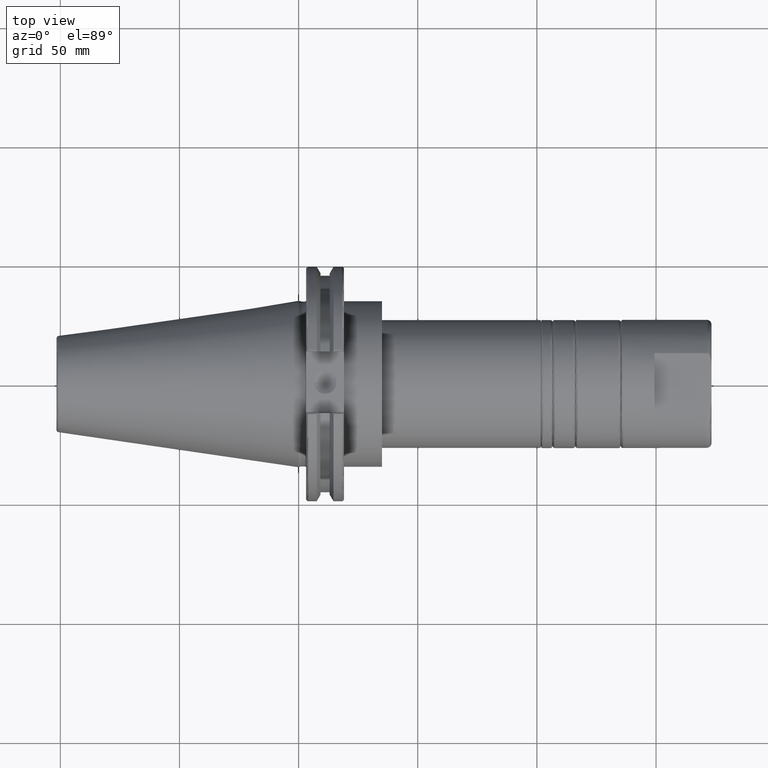
[diagram: clean part render]
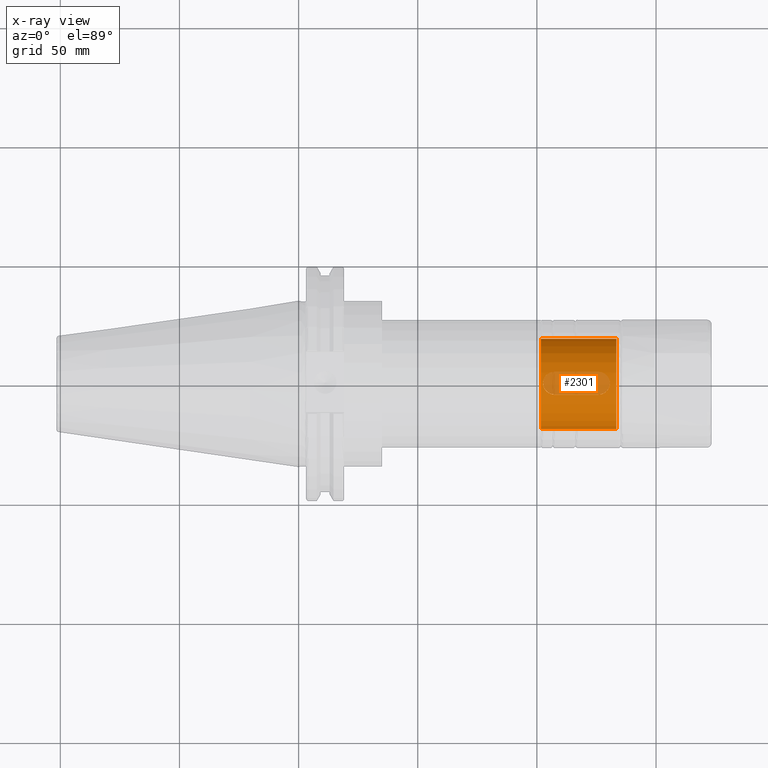
[diagram: x-ray — body ghosted, one internal face saturated and labeled with its STEP entity id]
A machine part, top view, then the same camera in x-ray: the body is ghosted and one INTERNAL B-rep face — a face not visible from any outside direction — is saturated and labeled: STEP entity #2301.
In plain terms, the highlighted cylindrical surface (bore or boss wall) has radius 19.05 mm, axis along (1, 0, 0).
Its self-contained STEP definition (entity closure, byte-faithful):
#559=FACE_BOUND('',#861,.T.);
#581=CIRCLE('',#2619,19.05);
#582=CIRCLE('',#2621,19.05);
#686=B_SPLINE_CURVE_WITH_KNOTS('',3,(#3692,#3693,#3694,#3695,#3696,#3697,
#3698,#3699,#3700,#3701,#3702,#3703,#3704,#3705,#3706,#3707,#3708,#3709),
 .UNSPECIFIED.,.F.,.F.,(4,2,2,2,2,2,2,2,4),(-1.4417869632546,-1.26155099274785,
-1.08131502224109,-0.901104251934196,-0.720893481627298,-0.540682711320399,
-0.3604719410135,-0.18023597050675,0.),.UNSPECIFIED.);
#687=B_SPLINE_CURVE_WITH_KNOTS('',3,(#3720,#3721,#3722,#3723,#3724,#3725,
#3726,#3727,#3728,#3729,#3730,#3731,#3732,#3733,#3734,#3735,#3736,#3737),
 .UNSPECIFIED.,.F.,.F.,(4,2,2,2,2,2,2,2,4),(0.,0.18023597050675,0.360471941013501,
0.540682711320399,0.720893481627298,0.901104251934197,1.0813150222411,1.26155099274784,
1.44178696325459),.UNSPECIFIED.);
#712=CYLINDRICAL_SURFACE('',#2620,19.05);
#745=FACE_OUTER_BOUND('',#860,.T.);
#860=EDGE_LOOP('',(#1725,#1726,#1727,#1728));
#861=EDGE_LOOP('',(#1729,#1730,#1731,#1732));
#980=LINE('',#3684,#1112);
#985=LINE('',#3715,#1117);
#990=LINE('',#3759,#1122);
#1112=VECTOR('',#2923,10.);
#1117=VECTOR('',#2934,10.);
#1122=VECTOR('',#2967,19.05);
#1244=VERTEX_POINT('',#3682);
#1245=VERTEX_POINT('',#3683);
#1248=VERTEX_POINT('',#3691);
#1250=VERTEX_POINT('',#3714);
#1256=VERTEX_POINT('',#3754);
#1257=VERTEX_POINT('',#3757);
#1423=EDGE_CURVE('',#1244,#1245,#980,.T.);
#1427=EDGE_CURVE('',#1245,#1248,#686,.T.);
#1430=EDGE_CURVE('',#1248,#1250,#985,.T.);
#1433=EDGE_CURVE('',#1250,#1244,#687,.T.);
#1441=EDGE_CURVE('',#1256,#1256,#581,.T.);
#1442=EDGE_CURVE('',#1257,#1257,#582,.T.);
#1443=EDGE_CURVE('',#1257,#1256,#990,.T.);
#1725=ORIENTED_EDGE('',*,*,#1442,.F.);
#1726=ORIENTED_EDGE('',*,*,#1443,.T.);
#1727=ORIENTED_EDGE('',*,*,#1441,.T.);
#1728=ORIENTED_EDGE('',*,*,#1443,.F.);
#1729=ORIENTED_EDGE('',*,*,#1430,.T.);
#1730=ORIENTED_EDGE('',*,*,#1433,.T.);
#1731=ORIENTED_EDGE('',*,*,#1423,.T.);
#1732=ORIENTED_EDGE('',*,*,#1427,.T.);
#2301=ADVANCED_FACE('',(#745,#559),#712,.T.);
#2619=AXIS2_PLACEMENT_3D('',#3755,#2961,#2962);
#2620=AXIS2_PLACEMENT_3D('',#3756,#2963,#2964);
#2621=AXIS2_PLACEMENT_3D('',#3758,#2965,#2966);
#2923=DIRECTION('',(1.,0.,0.));
#2934=DIRECTION('',(-1.,0.,0.));
#2961=DIRECTION('center_axis',(1.,0.,0.));
#2962=DIRECTION('ref_axis',(0.,0.,-1.));
#2963=DIRECTION('center_axis',(1.,0.,0.));
#2964=DIRECTION('ref_axis',(0.,0.,1.));
#2965=DIRECTION('center_axis',(1.,0.,0.));
#2966=DIRECTION('ref_axis',(0.,0.,-1.));
#2967=DIRECTION('',(-1.,0.,0.));
#3682=CARTESIAN_POINT('',(107.3625,4.7625,18.4450831863129));
#3683=CARTESIAN_POINT('',(125.8375,4.76250000000001,18.4450831863129));
#3684=CARTESIAN_POINT('',(117.475,4.7625,18.4450831863129));
#3691=CARTESIAN_POINT('',(125.8375,-4.76250000000001,18.4450831863129));
#3692=CARTESIAN_POINT('Ctrl Pts',(125.8375,4.76250000000001,18.4450831863129));
#3693=CARTESIAN_POINT('Ctrl Pts',(126.438286568356,4.76250000000001,18.4450831863129));
#3694=CARTESIAN_POINT('Ctrl Pts',(127.0772821344,4.64190899510342,18.4774933725533));
#3695=CARTESIAN_POINT('Ctrl Pts',(128.249852387457,4.15510972911561,18.5930132542216));
#3696=CARTESIAN_POINT('Ctrl Pts',(128.783660864781,3.78903122602047,18.6742892570908));
#3697=CARTESIAN_POINT('Ctrl Pts',(129.626472301874,2.94621978892818,18.8256626598014));
#3698=CARTESIAN_POINT('Ctrl Pts',(129.992596747451,2.41238677066725,18.9058154925386));
#3699=CARTESIAN_POINT('Ctrl Pts',(130.47942955453,1.23972949832609,19.0187418121652));
#3700=CARTESIAN_POINT('Ctrl Pts',(130.6,0.600702567689695,19.05));
#3701=CARTESIAN_POINT('Ctrl Pts',(130.6,-0.600702567689627,19.05));
#3702=CARTESIAN_POINT('Ctrl Pts',(130.47942955453,-1.23972949832602,19.0187418121652));
#3703=CARTESIAN_POINT('Ctrl Pts',(129.992596747451,-2.41238677066719,18.9058154925386));
#3704=CARTESIAN_POINT('Ctrl Pts',(129.626472301874,-2.94621978892811,18.8256626598014));
#3705=CARTESIAN_POINT('Ctrl Pts',(128.783660864781,-3.78903122602041,18.6742892570908));
#3706=CARTESIAN_POINT('Ctrl Pts',(128.249852387457,-4.15510972911554,18.5930132542216));
#3707=CARTESIAN_POINT('Ctrl Pts',(127.0772821344,-4.64190899510336,18.4774933725533));
#3708=CARTESIAN_POINT('Ctrl Pts',(126.438286568356,-4.76249999999994,18.4450831863129));
#3709=CARTESIAN_POINT('Ctrl Pts',(125.8375,-4.76249999999994,18.4450831863129));
#3714=CARTESIAN_POINT('',(107.3625,-4.76250000000001,18.4450831863129));
#3715=CARTESIAN_POINT('',(117.475,-4.76250000000001,18.4450831863129));
#3720=CARTESIAN_POINT('Ctrl Pts',(107.3625,-4.76249999999995,18.4450831863129));
#3721=CARTESIAN_POINT('Ctrl Pts',(106.761713431644,-4.76249999999995,18.4450831863129));
#3722=CARTESIAN_POINT('Ctrl Pts',(106.1227178656,-4.64190899510336,18.4774933725533));
#3723=CARTESIAN_POINT('Ctrl Pts',(104.950147612543,-4.15510972911554,18.5930132542216));
#3724=CARTESIAN_POINT('Ctrl Pts',(104.416339135219,-3.78903122602041,18.6742892570908));
#3725=CARTESIAN_POINT('Ctrl Pts',(103.573527698126,-2.94621978892811,18.8256626598014));
#3726=CARTESIAN_POINT('Ctrl Pts',(103.207403252549,-2.41238677066718,18.9058154925386));
#3727=CARTESIAN_POINT('Ctrl Pts',(102.720570445469,-1.23972949832602,19.0187418121652));
#3728=CARTESIAN_POINT('Ctrl Pts',(102.6,-0.600702567689633,19.05));
#3729=CARTESIAN_POINT('Ctrl Pts',(102.6,0.600702567689692,19.05));
#3730=CARTESIAN_POINT('Ctrl Pts',(102.720570445469,1.23972949832609,19.0187418121652));
#3731=CARTESIAN_POINT('Ctrl Pts',(103.207403252549,2.41238677066726,18.9058154925386));
#3732=CARTESIAN_POINT('Ctrl Pts',(103.573527698126,2.94621978892817,18.8256626598014));
#3733=CARTESIAN_POINT('Ctrl Pts',(104.416339135219,3.78903122602047,18.6742892570908));
#3734=CARTESIAN_POINT('Ctrl Pts',(104.950147612543,4.1551097291156,18.5930132542216));
#3735=CARTESIAN_POINT('Ctrl Pts',(106.1227178656,4.64190899510341,18.4774933725533));
#3736=CARTESIAN_POINT('Ctrl Pts',(106.761713431644,4.7625,18.4450831863129));
#3737=CARTESIAN_POINT('Ctrl Pts',(107.3625,4.7625,18.4450831863129));
#3754=CARTESIAN_POINT('',(101.6,2.33295215237571E-15,-19.05));
#3755=CARTESIAN_POINT('Origin',(101.6,0.,0.));
#3756=CARTESIAN_POINT('Origin',(117.475,0.,0.));
#3757=CARTESIAN_POINT('',(133.35,2.33295215237571E-15,-19.05));
#3758=CARTESIAN_POINT('Origin',(133.35,0.,0.));
#3759=CARTESIAN_POINT('',(117.475,2.33295215237571E-15,-19.05));